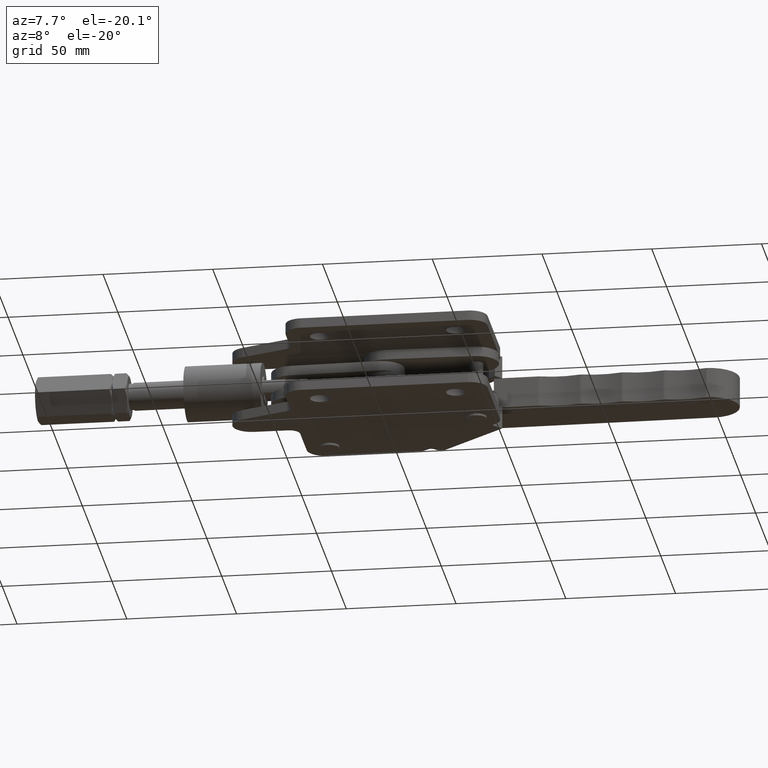
[diagram: clean part render]
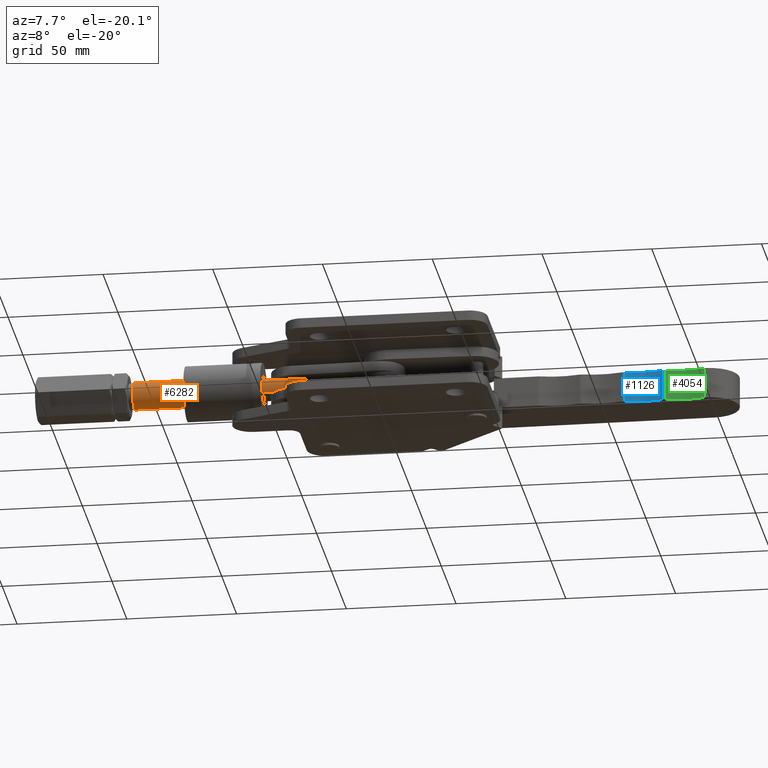
[diagram: same view with three faces highlighted in distinct colors, each labeled with its STEP entity id]
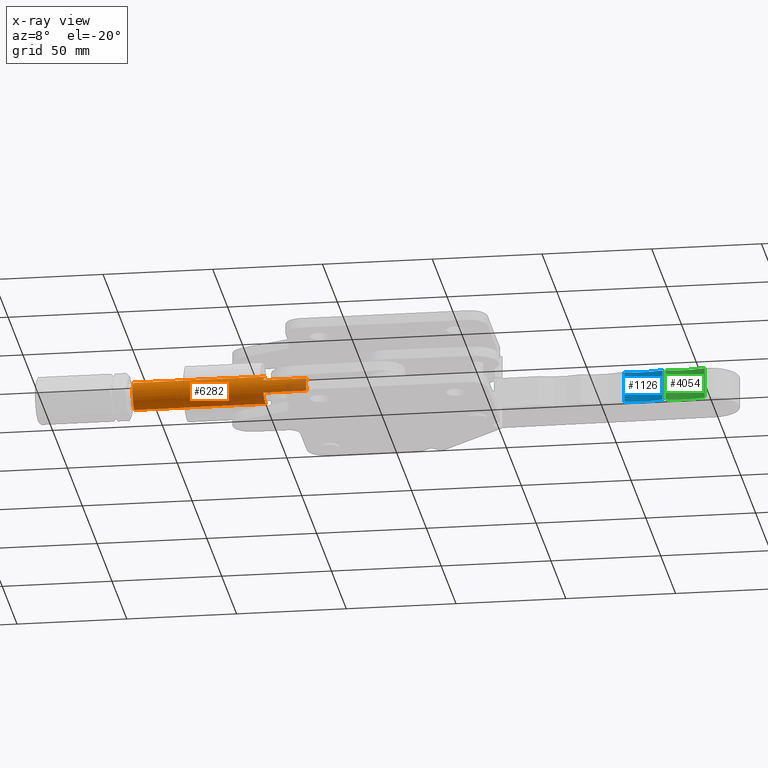
[diagram: x-ray of the same camera — body ghosted, the three highlighted faces saturated]
A machine part, auxiliary view with three faces highlighted in distinct colors.
The next image is the same camera in x-ray (body ghosted, the three faces saturated) — at least one of them is partly hidden behind the body in this view.
Their STEP definitions:

[orange] entity #6282 — the highlighted cylindrical surface (edge-blend (fillet) strip) has radius 6.35 mm, axis along (-1, -0, -0).
#67 = CARTESIAN_POINT ( 'NONE',  ( -86.37745854833150400, 18.40334921582559200, -14.19999999999998700 ) ) ;
#519 = EDGE_CURVE ( 'NONE', #4453, #6310, #5436, .T. ) ;
#621 = VERTEX_POINT ( 'NONE', #6759 ) ;
#646 = AXIS2_PLACEMENT_3D ( 'NONE', #3585, #7928, #4223 ) ;
#872 = ORIENTED_EDGE ( 'NONE', *, *, #4874, .T. ) ;
#999 = VERTEX_POINT ( 'NONE', #6461 ) ;
#1004 = LINE ( 'NONE', #67, #5752 ) ;
#1483 = VECTOR ( 'NONE', #4576, 1000.000000000000000 ) ;
#1561 = CARTESIAN_POINT ( 'NONE',  ( -86.87745854833146100, 24.00000000000000000, -17.19999999999998500 ) ) ;
#1609 = VECTOR ( 'NONE', #6134, 1000.000000000000000 ) ;
#1675 = LINE ( 'NONE', #2108, #1483 ) ;
#1854 = ORIENTED_EDGE ( 'NONE', *, *, #3559, .T. ) ;
#1890 = CYLINDRICAL_SURFACE ( 'NONE', #7909, 6.349999999999999600 ) ;
#2108 = CARTESIAN_POINT ( 'NONE',  ( -86.37745854833150400, 18.40334921582559200, -20.19999999999998500 ) ) ;
#2118 = EDGE_CURVE ( 'NONE', #3280, #621, #1675, .T. ) ;
#2174 = ORIENTED_EDGE ( 'NONE', *, *, #7231, .T. ) ;
#2190 = DIRECTION ( 'NONE',  ( 0.0000000000000000000, 0.0000000000000000000, -1.000000000000000000 ) ) ;
#2337 = DIRECTION ( 'NONE',  ( -1.000000000000000000, 0.0000000000000000000, 0.0000000000000000000 ) ) ;
#2384 = CARTESIAN_POINT ( 'NONE',  ( -106.3774585483315200, 18.40334921582559200, -14.19999999999998700 ) ) ;
#2424 = CARTESIAN_POINT ( 'NONE',  ( -86.37745854833150400, 24.00000000000000000, -23.54999999999998600 ) ) ;
#2608 = AXIS2_PLACEMENT_3D ( 'NONE', #1561, #5893, #2190 ) ;
#2645 = DIRECTION ( 'NONE',  ( -1.000000000000000000, -0.0000000000000000000, -0.0000000000000000000 ) ) ;
#2676 = CARTESIAN_POINT ( 'NONE',  ( -106.3774585483315200, 18.40334921582559200, -20.19999999999998500 ) ) ;
#2778 = VERTEX_POINT ( 'NONE', #4593 ) ;
#2880 = CARTESIAN_POINT ( 'NONE',  ( -106.3774585483315200, 24.00000000000000000, -23.54999999999998600 ) ) ;
#2916 = VERTEX_POINT ( 'NONE', #2880 ) ;
#3272 = ORIENTED_EDGE ( 'NONE', *, *, #2118, .T. ) ;
#3280 = VERTEX_POINT ( 'NONE', #2676 ) ;
#3390 = DIRECTION ( 'NONE',  ( -1.000000000000000000, 0.0000000000000000000, 0.0000000000000000000 ) ) ;
#3512 = FACE_OUTER_BOUND ( 'NONE', #5045, .T. ) ;
#3559 = EDGE_CURVE ( 'NONE', #2778, #999, #5641, .T. ) ;
#3585 = CARTESIAN_POINT ( 'NONE',  ( -165.9774585483315300, 24.00000000000000000, -17.19999999999998500 ) ) ;
#3605 = EDGE_CURVE ( 'NONE', #6310, #2778, #5823, .T. ) ;
#3756 = DIRECTION ( 'NONE',  ( -1.000000000000000000, -0.0000000000000000000, -0.0000000000000000000 ) ) ;
#4145 = CIRCLE ( 'NONE', #7138, 6.349999999999999600 ) ;
#4223 = DIRECTION ( 'NONE',  ( 0.0000000000000000000, 0.0000000000000000000, -1.000000000000000000 ) ) ;
#4453 = VERTEX_POINT ( 'NONE', #2384 ) ;
#4518 = CARTESIAN_POINT ( 'NONE',  ( -106.3774585483315200, 24.00000000000000000, -10.84999999999998700 ) ) ;
#4576 = DIRECTION ( 'NONE',  ( 1.000000000000000000, 0.0000000000000000000, 0.0000000000000000000 ) ) ;
#4593 = CARTESIAN_POINT ( 'NONE',  ( -165.9774585483315300, 24.00000000000000000, -10.84999999999998700 ) ) ;
#4720 = LINE ( 'NONE', #2424, #1609 ) ;
#4874 = EDGE_CURVE ( 'NONE', #621, #6314, #7036, .T. ) ;
#4894 = AXIS2_PLACEMENT_3D ( 'NONE', #6046, #2337, #6669 ) ;
#5045 = EDGE_LOOP ( 'NONE', ( #6663, #2174, #3272, #872, #7955, #6205, #6696, #1854 ) ) ;
#5129 = EDGE_CURVE ( 'NONE', #2916, #999, #4720, .T. ) ;
#5436 = CIRCLE ( 'NONE', #4894, 6.349999999999999600 ) ;
#5479 = CARTESIAN_POINT ( 'NONE',  ( -86.37745854833150400, 24.00000000000000000, -10.84999999999998700 ) ) ;
#5641 = CIRCLE ( 'NONE', #646, 6.350000000000001400 ) ;
#5709 = DIRECTION ( 'NONE',  ( 0.0000000000000000000, 0.0000000000000000000, 1.000000000000000000 ) ) ;
#5736 = CARTESIAN_POINT ( 'NONE',  ( -86.37745854833150400, 24.00000000000000000, -17.19999999999998500 ) ) ;
#5752 = VECTOR ( 'NONE', #3756, 1000.000000000000000 ) ;
#5760 = CARTESIAN_POINT ( 'NONE',  ( -86.87745854833146100, 18.40334921582559200, -14.19999999999998700 ) ) ;
#5823 = LINE ( 'NONE', #5479, #7081 ) ;
#5893 = DIRECTION ( 'NONE',  ( -1.000000000000000000, 0.0000000000000000000, 0.0000000000000000000 ) ) ;
#6046 = CARTESIAN_POINT ( 'NONE',  ( -106.3774585483315200, 24.00000000000000000, -17.19999999999998500 ) ) ;
#6134 = DIRECTION ( 'NONE',  ( -1.000000000000000000, -0.0000000000000000000, -0.0000000000000000000 ) ) ;
#6163 = EDGE_CURVE ( 'NONE', #6314, #4453, #1004, .T. ) ;
#6205 = ORIENTED_EDGE ( 'NONE', *, *, #519, .T. ) ;
#6282 = ADVANCED_FACE ( 'NONE', ( #3512 ), #1890, .T. ) ;
#6310 = VERTEX_POINT ( 'NONE', #4518 ) ;
#6314 = VERTEX_POINT ( 'NONE', #5760 ) ;
#6461 = CARTESIAN_POINT ( 'NONE',  ( -165.9774585483315300, 24.00000000000000000, -23.54999999999998600 ) ) ;
#6663 = ORIENTED_EDGE ( 'NONE', *, *, #5129, .F. ) ;
#6669 = DIRECTION ( 'NONE',  ( 0.0000000000000000000, 0.0000000000000000000, 1.000000000000000000 ) ) ;
#6696 = ORIENTED_EDGE ( 'NONE', *, *, #3605, .T. ) ;
#6717 = DIRECTION ( 'NONE',  ( -1.000000000000000000, -0.0000000000000000000, -0.0000000000000000000 ) ) ;
#6759 = CARTESIAN_POINT ( 'NONE',  ( -86.87745854833146100, 18.40334921582559200, -20.19999999999998500 ) ) ;
#7036 = CIRCLE ( 'NONE', #2608, 6.350000000000001400 ) ;
#7081 = VECTOR ( 'NONE', #6717, 1000.000000000000000 ) ;
#7119 = CARTESIAN_POINT ( 'NONE',  ( -106.3774585483315200, 24.00000000000000000, -17.19999999999998500 ) ) ;
#7138 = AXIS2_PLACEMENT_3D ( 'NONE', #7119, #3390, #7736 ) ;
#7231 = EDGE_CURVE ( 'NONE', #2916, #3280, #4145, .T. ) ;
#7736 = DIRECTION ( 'NONE',  ( 0.0000000000000000000, 0.0000000000000000000, 1.000000000000000000 ) ) ;
#7909 = AXIS2_PLACEMENT_3D ( 'NONE', #5736, #2645, #5709 ) ;
#7928 = DIRECTION ( 'NONE',  ( 1.000000000000000000, 0.0000000000000000000, 0.0000000000000000000 ) ) ;
#7955 = ORIENTED_EDGE ( 'NONE', *, *, #6163, .T. ) ;

[blue] entity #1126 — the highlighted cylindrical surface (partial cylindrical patch) has radius 32 mm, axis along (0, -0, -1).
#300 = ORIENTED_EDGE ( 'NONE', *, *, #463, .F. ) ;
#328 = CARTESIAN_POINT ( 'NONE',  ( 55.43995101732876000, 47.68621213240659500, -10.19999999999998700 ) ) ;
#417 = CARTESIAN_POINT ( 'NONE',  ( 65.50808792281705500, 17.31134391454688200, -10.19999999999998700 ) ) ;
#463 = EDGE_CURVE ( 'NONE', #1647, #736, #7260, .T. ) ;
#736 = VERTEX_POINT ( 'NONE', #1936 ) ;
#882 = AXIS2_PLACEMENT_3D ( 'NONE', #5732, #2030, #6349 ) ;
#1126 = ADVANCED_FACE ( 'NONE', ( #1160 ), #6778, .F. ) ;
#1160 = FACE_OUTER_BOUND ( 'NONE', #3279, .T. ) ;
#1281 = VECTOR ( 'NONE', #2273, 1000.000000000000000 ) ;
#1647 = VERTEX_POINT ( 'NONE', #2899 ) ;
#1649 = CARTESIAN_POINT ( 'NONE',  ( 55.43995101732876000, 47.68621213240659500, -10.19999999999998700 ) ) ;
#1929 = AXIS2_PLACEMENT_3D ( 'NONE', #417, #3507, #6008 ) ;
#1936 = CARTESIAN_POINT ( 'NONE',  ( 72.79377626405703000, 48.47091299684186800, -24.19999999999998500 ) ) ;
#2020 = EDGE_CURVE ( 'NONE', #3836, #736, #3900, .T. ) ;
#2030 = DIRECTION ( 'NONE',  ( 0.0000000000000000000, -0.0000000000000000000, -1.000000000000000000 ) ) ;
#2214 = VERTEX_POINT ( 'NONE', #328 ) ;
#2257 = CARTESIAN_POINT ( 'NONE',  ( 72.79377626405703000, 48.47091299684186800, -10.19999999999998700 ) ) ;
#2273 = DIRECTION ( 'NONE',  ( 0.0000000000000000000, -0.0000000000000000000, -1.000000000000000000 ) ) ;
#2389 = ORIENTED_EDGE ( 'NONE', *, *, #2020, .T. ) ;
#2395 = AXIS2_PLACEMENT_3D ( 'NONE', #2998, #7317, #3611 ) ;
#2774 = CARTESIAN_POINT ( 'NONE',  ( 55.43995101732876000, 47.68621213240659500, -24.19999999999998500 ) ) ;
#2899 = CARTESIAN_POINT ( 'NONE',  ( 72.79377626405703000, 48.47091299684186800, -10.19999999999998700 ) ) ;
#2998 = CARTESIAN_POINT ( 'NONE',  ( 65.50808792281705500, 17.31134391454688200, -10.19999999999998700 ) ) ;
#3279 = EDGE_LOOP ( 'NONE', ( #2389, #300, #3937, #3466 ) ) ;
#3466 = ORIENTED_EDGE ( 'NONE', *, *, #3495, .T. ) ;
#3495 = EDGE_CURVE ( 'NONE', #2214, #3836, #7860, .T. ) ;
#3507 = DIRECTION ( 'NONE',  ( 0.0000000000000000000, -0.0000000000000000000, -1.000000000000000000 ) ) ;
#3611 = DIRECTION ( 'NONE',  ( 0.9983734417605476500, 0.05701290018231303800, 0.0000000000000000000 ) ) ;
#3836 = VERTEX_POINT ( 'NONE', #2774 ) ;
#3900 = CIRCLE ( 'NONE', #882, 31.99999999999996100 ) ;
#3937 = ORIENTED_EDGE ( 'NONE', *, *, #4045, .F. ) ;
#3972 = VECTOR ( 'NONE', #7831, 1000.000000000000000 ) ;
#4045 = EDGE_CURVE ( 'NONE', #2214, #1647, #6293, .T. ) ;
#5732 = CARTESIAN_POINT ( 'NONE',  ( 65.50808792281705500, 17.31134391454688200, -24.19999999999998500 ) ) ;
#6008 = DIRECTION ( 'NONE',  ( -0.9983734417605476500, -0.05701290018231302400, 0.0000000000000000000 ) ) ;
#6293 = CIRCLE ( 'NONE', #2395, 31.99999999999996100 ) ;
#6349 = DIRECTION ( 'NONE',  ( 0.9983734417605476500, 0.05701290018231303800, 0.0000000000000000000 ) ) ;
#6778 = CYLINDRICAL_SURFACE ( 'NONE', #1929, 31.99999999999996800 ) ;
#7260 = LINE ( 'NONE', #2257, #3972 ) ;
#7317 = DIRECTION ( 'NONE',  ( 0.0000000000000000000, -0.0000000000000000000, -1.000000000000000000 ) ) ;
#7831 = DIRECTION ( 'NONE',  ( 0.0000000000000000000, -0.0000000000000000000, -1.000000000000000000 ) ) ;
#7860 = LINE ( 'NONE', #1649, #1281 ) ;

[green] entity #4054 — the highlighted cylindrical surface (partial cylindrical patch) has radius 32 mm, axis along (0, -0, -1).
#45 = VERTEX_POINT ( 'NONE', #6566 ) ;
#107 = EDGE_CURVE ( 'NONE', #2254, #5272, #1745, .T. ) ;
#110 = ORIENTED_EDGE ( 'NONE', *, *, #6557, .F. ) ;
#628 = EDGE_LOOP ( 'NONE', ( #6121, #4478, #110, #5614 ) ) ;
#1206 = DIRECTION ( 'NONE',  ( 0.0000000000000000000, -0.0000000000000000000, -1.000000000000000000 ) ) ;
#1361 = FACE_OUTER_BOUND ( 'NONE', #628, .T. ) ;
#1402 = DIRECTION ( 'NONE',  ( 0.0000000000000000000, -0.0000000000000000000, -1.000000000000000000 ) ) ;
#1451 = CARTESIAN_POINT ( 'NONE',  ( 92.14929663985753900, 49.09104235534283600, -24.19999999999998500 ) ) ;
#1745 = CIRCLE ( 'NONE', #4352, 32.00000000000004300 ) ;
#2023 = EDGE_CURVE ( 'NONE', #2844, #5272, #5375, .T. ) ;
#2070 = VECTOR ( 'NONE', #1402, 1000.000000000000000 ) ;
#2212 = AXIS2_PLACEMENT_3D ( 'NONE', #6054, #2352, #6682 ) ;
#2254 = VERTEX_POINT ( 'NONE', #4684 ) ;
#2352 = DIRECTION ( 'NONE',  ( 0.0000000000000000000, -0.0000000000000000000, -1.000000000000000000 ) ) ;
#2375 = CARTESIAN_POINT ( 'NONE',  ( 84.23262393569355300, 18.08578000690998200, -10.19999999999998700 ) ) ;
#2400 = DIRECTION ( 'NONE',  ( -0.9983734417605476500, -0.05701290018231310700, 0.0000000000000000000 ) ) ;
#2481 = DIRECTION ( 'NONE',  ( 0.0000000000000000000, -0.0000000000000000000, -1.000000000000000000 ) ) ;
#2693 = CIRCLE ( 'NONE', #2212, 32.00000000000004300 ) ;
#2819 = VECTOR ( 'NONE', #1206, 1000.000000000000000 ) ;
#2844 = VERTEX_POINT ( 'NONE', #6495 ) ;
#3050 = EDGE_CURVE ( 'NONE', #45, #2254, #4465, .T. ) ;
#3106 = CARTESIAN_POINT ( 'NONE',  ( 84.23262393569355300, 18.08578000690998200, -24.19999999999998500 ) ) ;
#4054 = ADVANCED_FACE ( 'NONE', ( #1361 ), #5795, .F. ) ;
#4352 = AXIS2_PLACEMENT_3D ( 'NONE', #3106, #2481, #6825 ) ;
#4465 = LINE ( 'NONE', #7361, #2819 ) ;
#4478 = ORIENTED_EDGE ( 'NONE', *, *, #2023, .F. ) ;
#4684 = CARTESIAN_POINT ( 'NONE',  ( 74.39873649373248600, 48.53729323333013200, -24.19999999999998500 ) ) ;
#5121 = CARTESIAN_POINT ( 'NONE',  ( 92.14929663985753900, 49.09104235534283600, -10.19999999999998700 ) ) ;
#5272 = VERTEX_POINT ( 'NONE', #1451 ) ;
#5316 = AXIS2_PLACEMENT_3D ( 'NONE', #2375, #6026, #2400 ) ;
#5375 = LINE ( 'NONE', #5121, #2070 ) ;
#5614 = ORIENTED_EDGE ( 'NONE', *, *, #3050, .T. ) ;
#5795 = CYLINDRICAL_SURFACE ( 'NONE', #5316, 32.00000000000004300 ) ;
#6026 = DIRECTION ( 'NONE',  ( 0.0000000000000000000, -0.0000000000000000000, -1.000000000000000000 ) ) ;
#6054 = CARTESIAN_POINT ( 'NONE',  ( 84.23262393569355300, 18.08578000690998200, -10.19999999999998700 ) ) ;
#6121 = ORIENTED_EDGE ( 'NONE', *, *, #107, .T. ) ;
#6495 = CARTESIAN_POINT ( 'NONE',  ( 92.14929663985753900, 49.09104235534283600, -10.19999999999998700 ) ) ;
#6557 = EDGE_CURVE ( 'NONE', #45, #2844, #2693, .T. ) ;
#6566 = CARTESIAN_POINT ( 'NONE',  ( 74.39873649373248600, 48.53729323333013200, -10.19999999999998700 ) ) ;
#6682 = DIRECTION ( 'NONE',  ( 0.9983734417605476500, 0.05701290018231310700, 0.0000000000000000000 ) ) ;
#6825 = DIRECTION ( 'NONE',  ( 0.9983734417605476500, 0.05701290018231310700, 0.0000000000000000000 ) ) ;
#7361 = CARTESIAN_POINT ( 'NONE',  ( 74.39873649373248600, 48.53729323333013200, -10.19999999999998700 ) ) ;